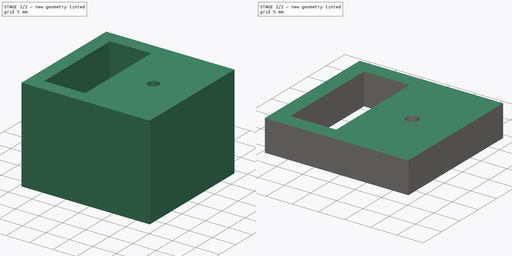
[diagram: build sequence overview — one tinted view per stage of 2, left to right]
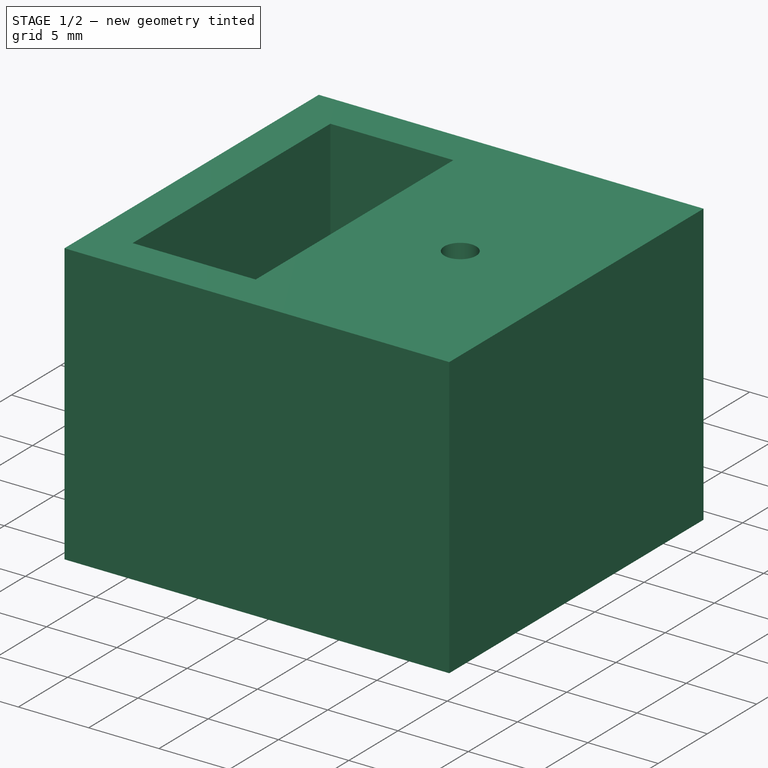
[diagram: stage 1 of 2 — iso view after this stage's code; geometry added in this stage tinted green]
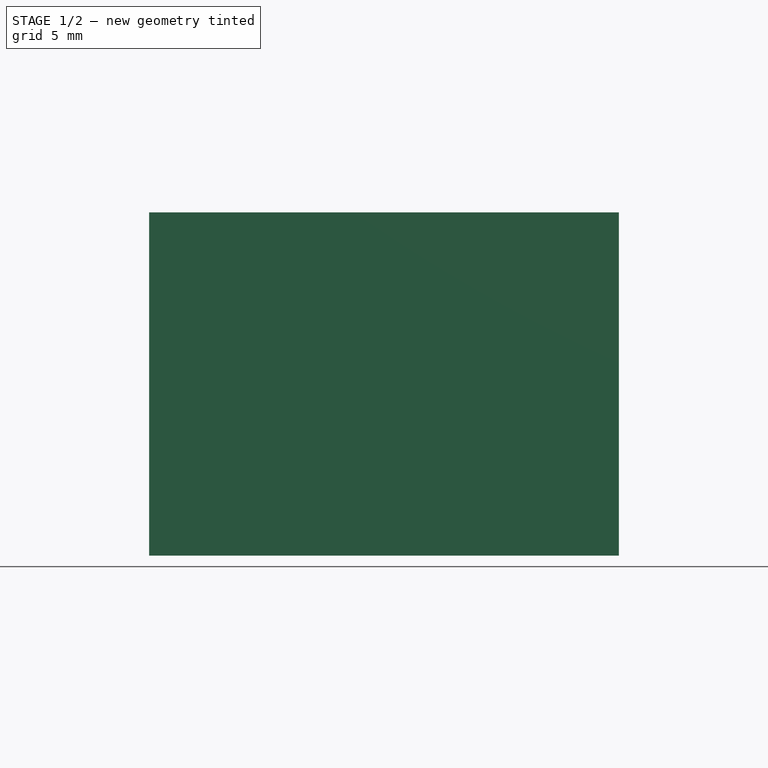
[diagram: stage 1 of 2 — front view after this stage's code; geometry added in this stage tinted green]
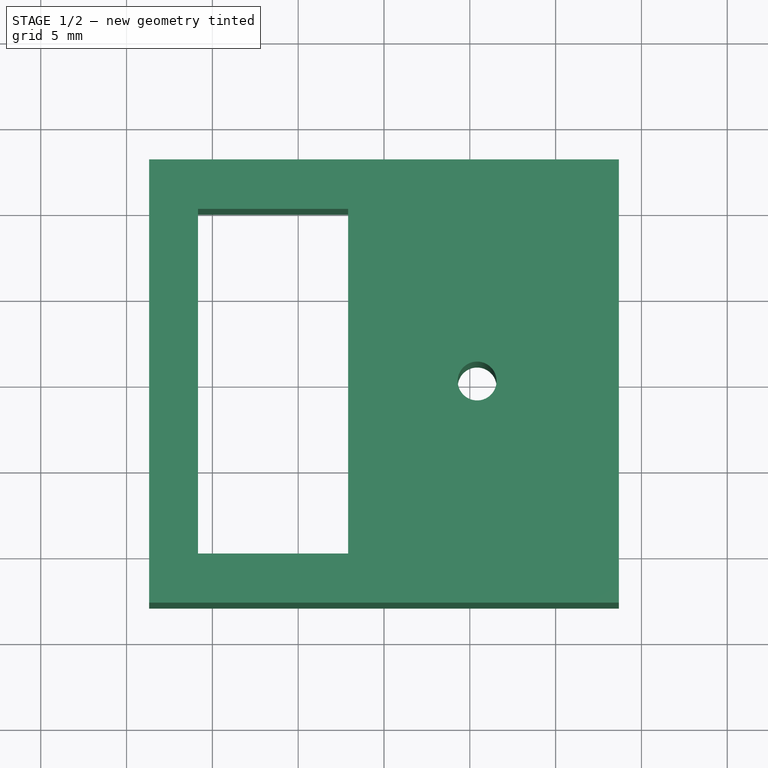
[diagram: stage 1 of 2 — top view after this stage's code; geometry added in this stage tinted green]
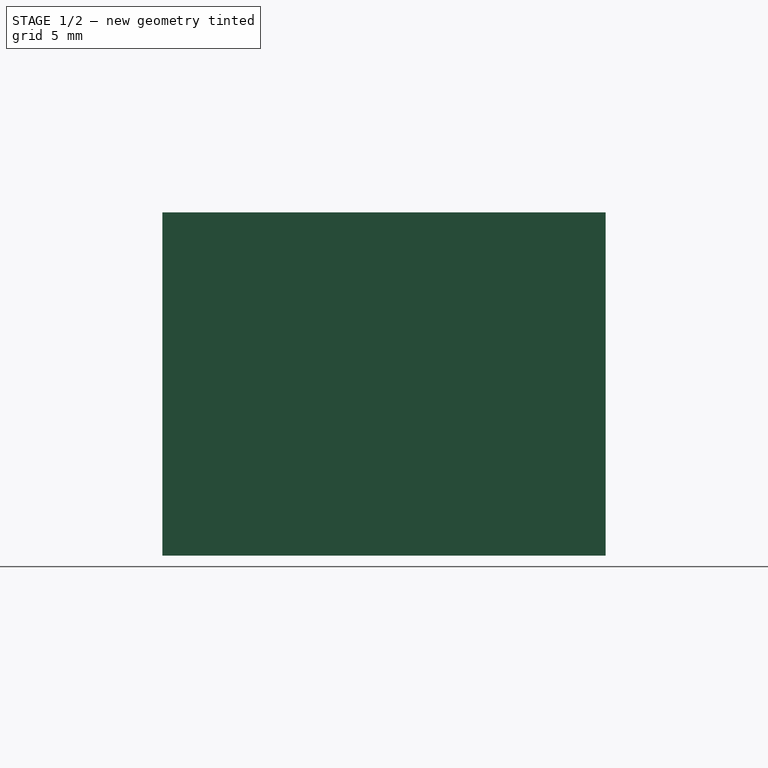
[diagram: stage 1 of 2 — right view after this stage's code; geometry added in this stage tinted green]
FCSTD DOCUMENT  (FreeCAD 0.18R14778 (Git))
Label: externalref_shapebinder
License: All rights reserved
LicenseURL: http://en.wikipedia.org/wiki/All_rights_reserved
objects: Sketcher::SketchObject×2, PartDesign::Pad×2, PartDesign::Body×2, PartDesign::SubShapeBinder×1
note: 9 computed .brp shape members not serialized (recipe doc carries the construction recipe); baked Part::Feature solids carry a one-line shape summary decoded from their .brp

FEATURE [Sketcher::SketchObject] Sketch
  LastGeoID = 10
  MapMode = 5
  Support = -> [XY_Plane]
  sketch-geometry (9):
    g0: LineSegment StartX=-13.6839 StartY=12.9142 StartZ=0 EndX=13.6839 EndY=12.9142 EndZ=0
    g1: LineSegment StartX=13.6839 StartY=12.9142 StartZ=0 EndX=13.6839 EndY=-12.9142 EndZ=0
    g2: LineSegment StartX=13.6839 StartY=-12.9142 StartZ=0 EndX=-13.6839 EndY=-12.9142 EndZ=0
    g3: LineSegment StartX=-13.6839 StartY=-12.9142 StartZ=0 EndX=-13.6839 EndY=12.9142 EndZ=0
    g4: LineSegment StartX=-10.8404 StartY=10.0304 StartZ=0 EndX=-2.08744 EndY=10.0304 EndZ=0
    g5: LineSegment StartX=-2.08744 StartY=10.0304 StartZ=0 EndX=-2.08744 EndY=-10.0534 EndZ=0
    g6: LineSegment StartX=-2.08744 StartY=-10.0534 StartZ=0 EndX=-10.8404 EndY=-10.0534 EndZ=0
    g7: LineSegment StartX=-10.8404 StartY=-10.0534 StartZ=0 EndX=-10.8404 EndY=10.0304 EndZ=0
    g8: Circle CenterX=5.42644 CenterY=0 CenterZ=0 NormalX=0 NormalY=0 NormalZ=1 AngleXU=0 Radius=1.13226
  constraints (16):
    c: Coincident(g0,g1)
    c: Coincident(g1,g2)
    c: Coincident(g2,g3)
    c: Coincident(g3,g0)
    c: Symmetric(g0,g0,g-2)
    c: Symmetric(g0,g1,g-1)
    c: Horizontal(g2)
    c: Coincident(g4,g5)
    c: Coincident(g5,g6)
    c: Coincident(g6,g7)
    c: Coincident(g7,g4)
    c: Horizontal(g4)
    c: Horizontal(g6)
    c: Vertical(g5)
    c: Vertical(g7)
    c: PointOnObject(g8,g-1)
FEATURE [PartDesign::Pad] Pad
  ClaimChildren = false
  Length = 20
  Length2 = 100
  Profile = -> Sketch
  Type = 0
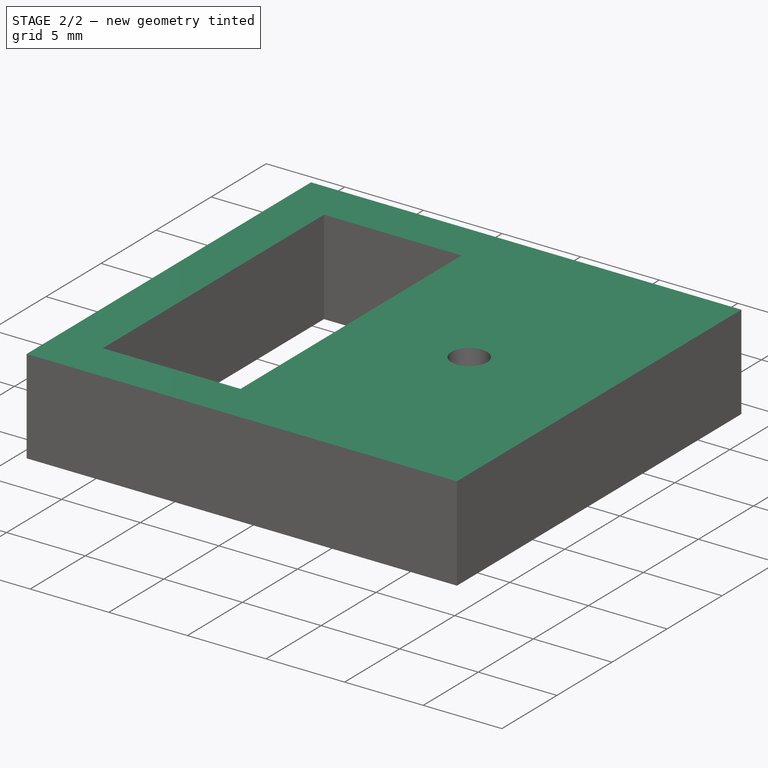
[diagram: stage 2 of 2 — iso view after this stage's code; geometry added in this stage tinted green]
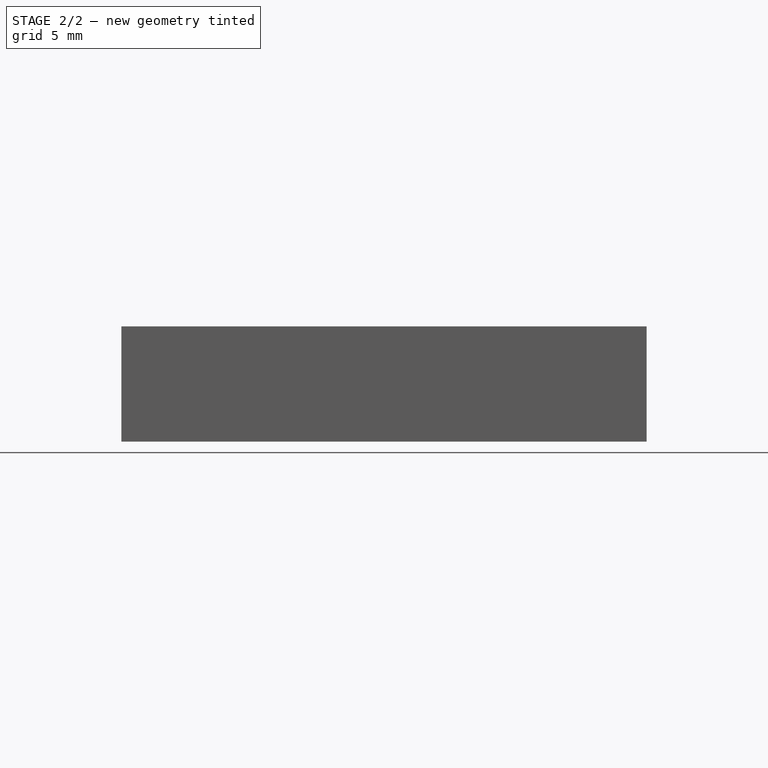
[diagram: stage 2 of 2 — front view after this stage's code; geometry added in this stage tinted green]
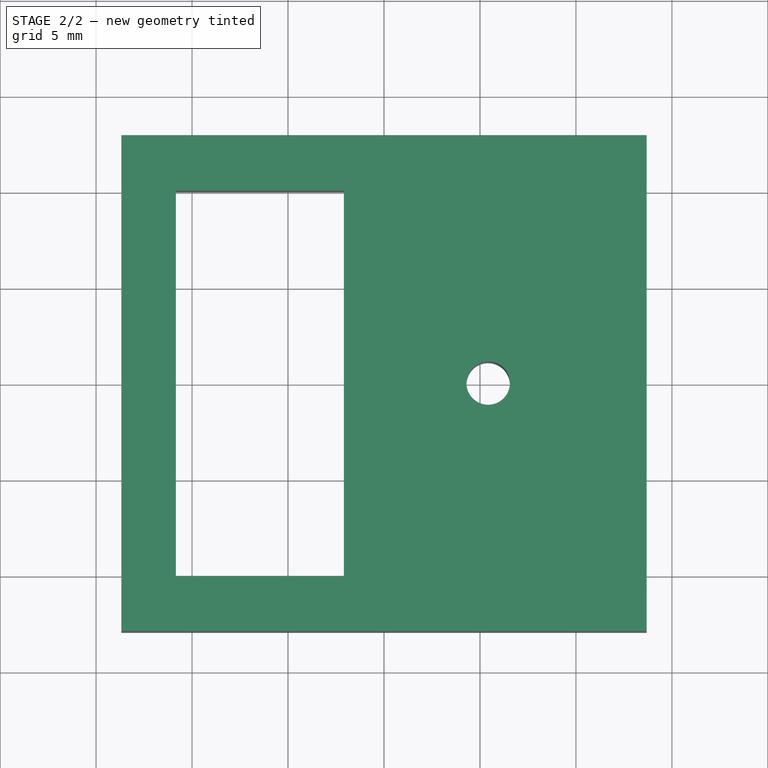
[diagram: stage 2 of 2 — top view after this stage's code; geometry added in this stage tinted green]
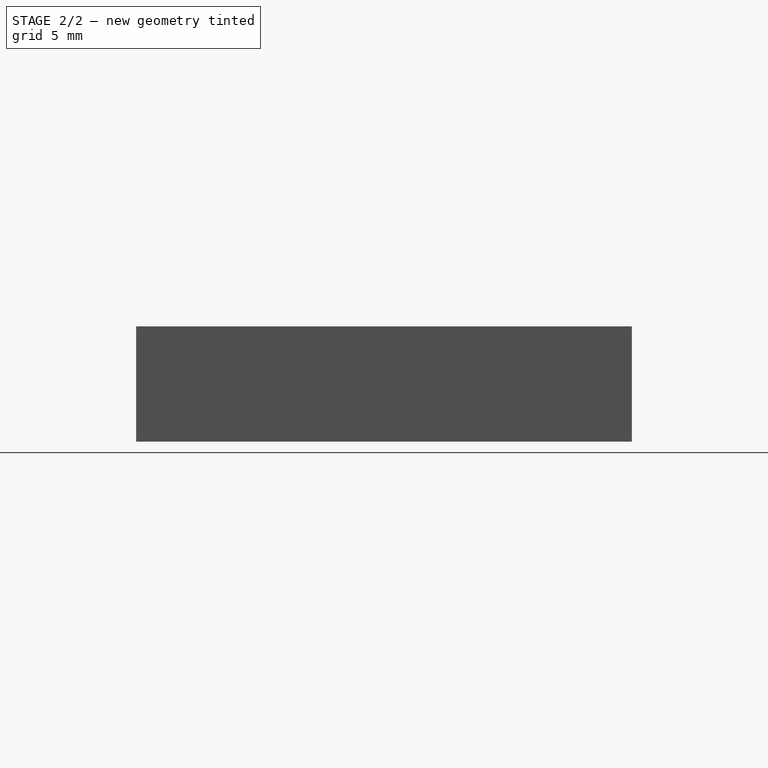
[diagram: stage 2 of 2 — right view after this stage's code; geometry added in this stage tinted green]
FEATURE [PartDesign::Body] Body  label="fundament"
  Group = -> [Sketch,Pad]
  Origin = -> Origin
  Tip = -> Pad
FEATURE [PartDesign::SubShapeBinder] Binder
  BindMode = 0
  ClaimChildren = false
  Fuse = true
  MakeFace = true
  PartialLoad = true
  Placement = pos=(0,0,-20) rot=(0,0,1;0rad)
  Relative = true
  Support = -> Body
FEATURE [Sketcher::SketchObject] Sketch001
  ExternalGeometry = -> [Binder]
  LastGeoID = 9
  MapMode = 5
  Support = -> [Binder]
  sketch-geometry (9):
    g0: LineSegment StartX=-13.6839 StartY=12.9142 StartZ=0 EndX=13.6839 EndY=12.9142 EndZ=0
    g1: LineSegment StartX=13.6839 StartY=12.9142 StartZ=0 EndX=13.6839 EndY=-12.9142 EndZ=0
    g2: LineSegment StartX=13.6839 StartY=-12.9142 StartZ=0 EndX=-13.6839 EndY=-12.9142 EndZ=0
    g3: LineSegment StartX=-13.6839 StartY=-12.9142 StartZ=0 EndX=-13.6839 EndY=12.9142 EndZ=0
    g4: LineSegment StartX=-10.8404 StartY=-10.0534 StartZ=0 EndX=-2.08744 EndY=-10.0534 EndZ=0
    g5: LineSegment StartX=-2.08744 StartY=-10.0534 StartZ=0 EndX=-2.08744 EndY=10.0304 EndZ=0
    g6: LineSegment StartX=-2.08744 StartY=10.0304 StartZ=0 EndX=-10.8404 EndY=10.0304 EndZ=0
    g7: LineSegment StartX=-10.8404 StartY=10.0304 StartZ=0 EndX=-10.8404 EndY=-10.0534 EndZ=0
    g8: Circle CenterX=5.42644 CenterY=0 CenterZ=0 NormalX=0 NormalY=0 NormalZ=1 AngleXU=0 Radius=1.13226
  constraints (24):
    c: Coincident(g0,g1)
    c: Coincident(g1,g2)
    c: Coincident(g2,g3)
    c: Coincident(g3,g0)
    c: Horizontal(g0)
    c: Horizontal(g2)
    c: Vertical(g1)
    c: Vertical(g3)
    c: Coincident(g0,g-6)
    c: Coincident(g1,g-5)
    c: Coincident(g4,g5)
    c: Coincident(g5,g6)
    c: Coincident(g6,g7)
    c: Coincident(g7,g4)
    c: Horizontal(g4)
    c: Horizontal(g6)
    c: Vertical(g5)
    c: Vertical(g7)
    c: Coincident(g4,g-9)
    c: Coincident(g5,g-11)
    c: Coincident(g8,g-7)
    c: Equal(g-7,g8)
    c: Equal(g-8,g8)
    c: Coincident(g8,g-8)
FEATURE [PartDesign::Pad] Pad001
  ClaimChildren = false
  Length = 6
  Length2 = 100
  Placement = pos=(0,0,-20) rot=(0,0,1;0rad)
  Profile = -> Sketch001
  Type = 0
FEATURE [PartDesign::Body] Body001
  Group = -> [Binder,Sketch001,Pad001]
  Origin = -> Origin001
  Placement = pos=(0,0,20) rot=(0,0,1;0rad)
  Tip = -> Pad001
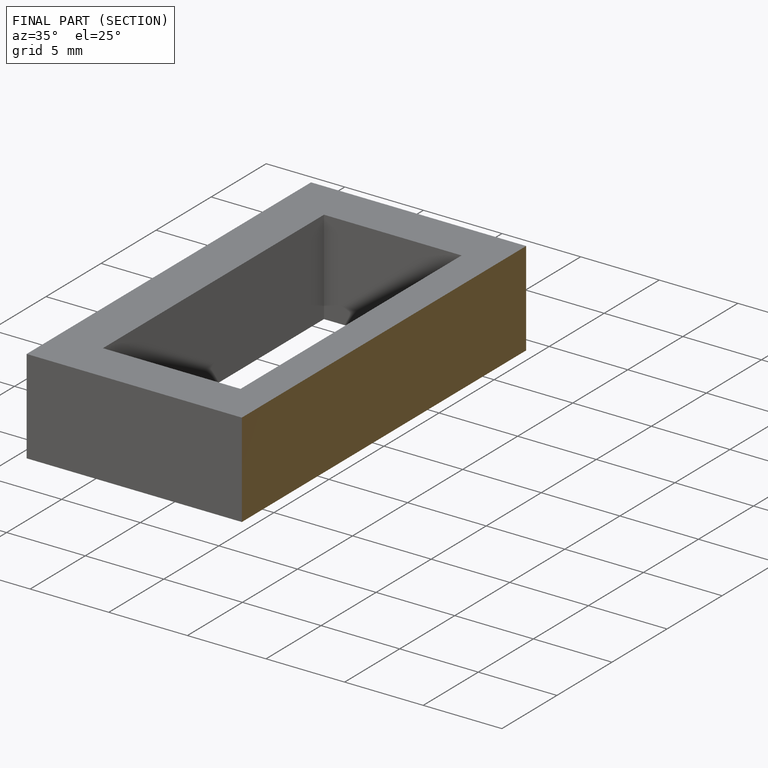
[diagram: finished part — half-section view (interior)]
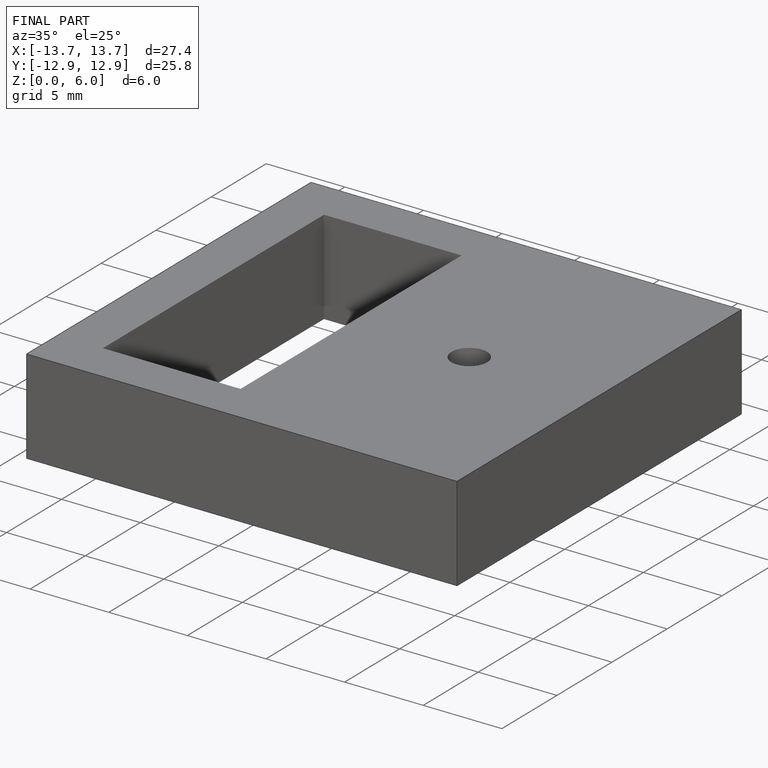
[diagram: finished part — iso view with bounding-box wireframe]
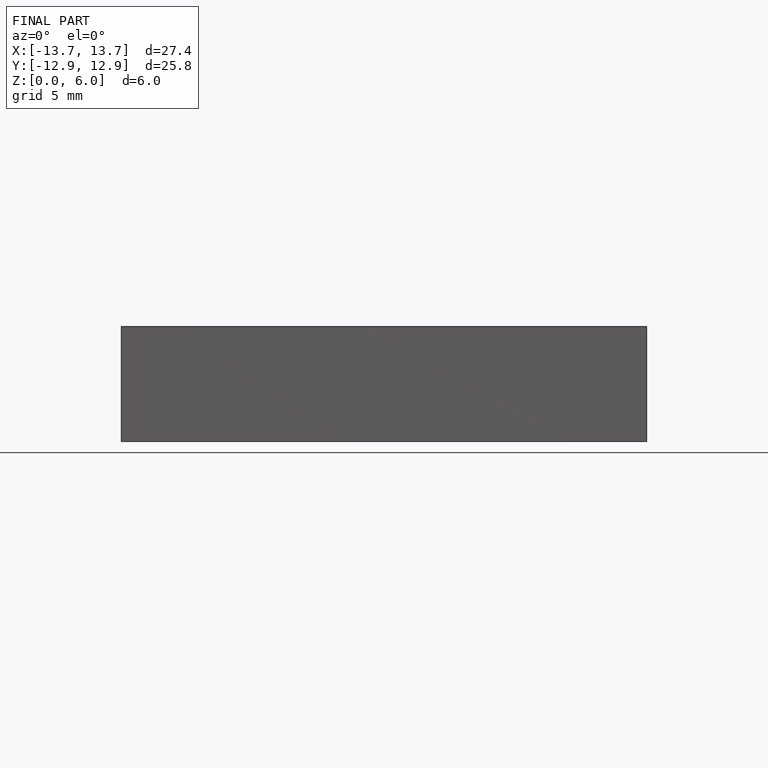
[diagram: finished part — front view with bounding-box wireframe]
